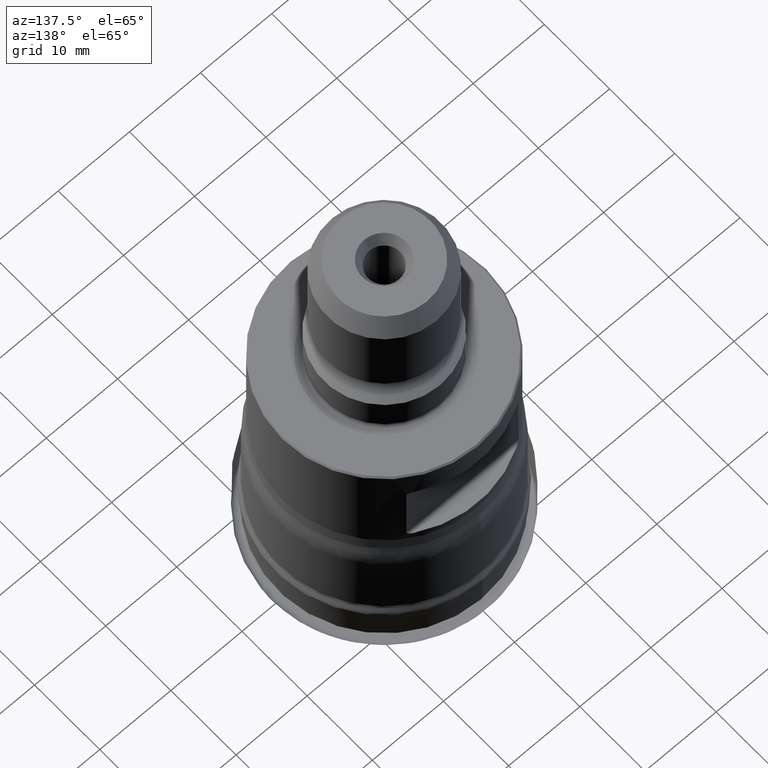
[diagram: clean part render]
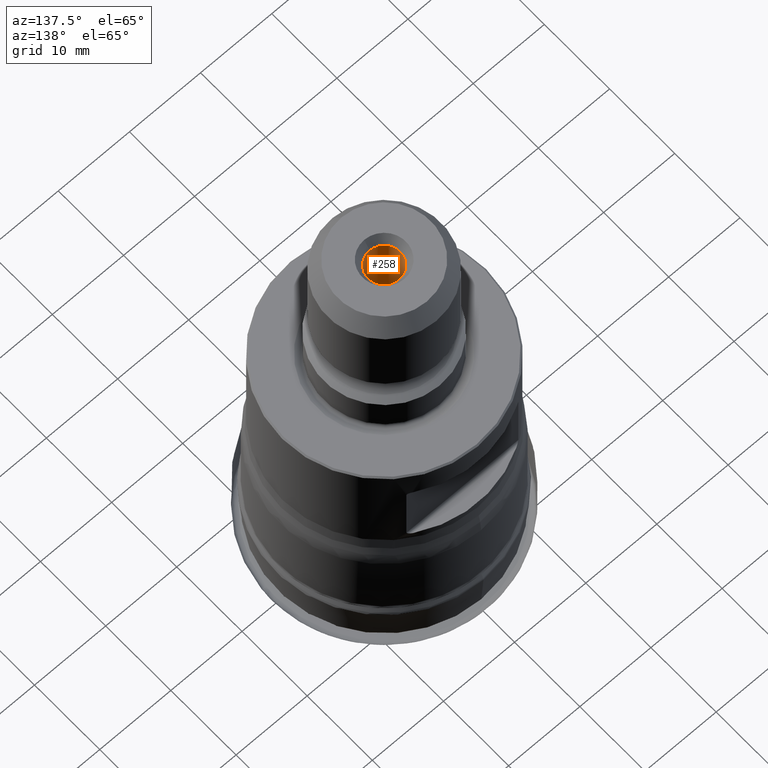
[diagram: same view with one face highlighted and labeled with its STEP entity id]
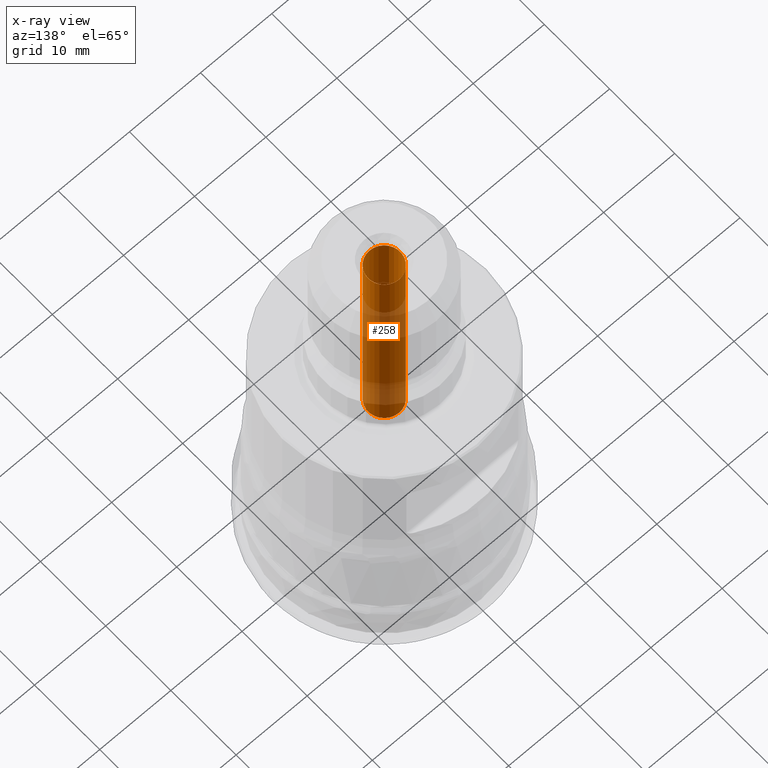
[diagram: x-ray of the same camera — body ghosted, the highlighted face saturated]
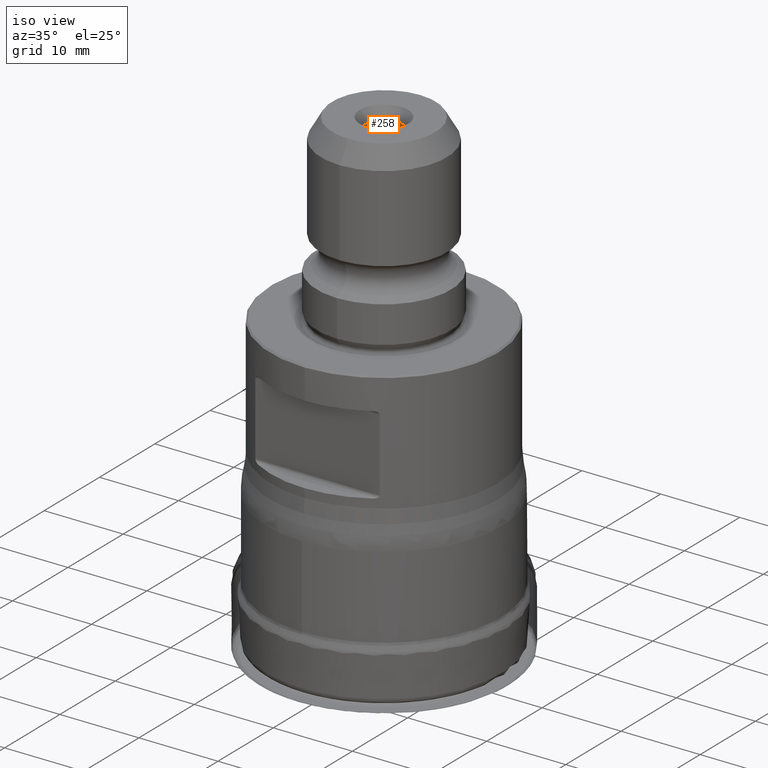
[diagram: same view with one face highlighted and labeled with its STEP entity id]
A machine part, auxiliary view. The second image highlights one B-rep face of the part: STEP entity #258.
The next image is the same camera in x-ray: the body ghosted, the highlighted face saturated — about 64% of this face is hidden behind the body in this view.
A second angle (iso view) of the same face is appended — the face is thin or edge-on in the first view.
In plain terms, the highlighted cylindrical surface (bore or boss wall) has radius 2.25 mm, axis along (0, -0, -1).
Its self-contained STEP definition (entity closure, byte-faithful):
#213=CYLINDRICAL_SURFACE('',#1025,2.25);
#258=ADVANCED_FACE('',(#362,#363),#213,.F.);
#362=FACE_BOUND('',#475,.T.);
#363=FACE_BOUND('',#476,.T.);
#475=EDGE_LOOP('',(#611));
#476=EDGE_LOOP('',(#612));
#611=ORIENTED_EDGE('',*,*,#819,.T.);
#612=ORIENTED_EDGE('',*,*,#818,.F.);
#745=VERTEX_POINT('',#1816);
#747=VERTEX_POINT('',#1820);
#818=EDGE_CURVE('',#745,#745,#885,.T.);
#819=EDGE_CURVE('',#747,#747,#886,.T.);
#885=CIRCLE('',#1022,2.25);
#886=CIRCLE('',#1024,2.25);
#1022=AXIS2_PLACEMENT_3D('',#1815,#1183,#1184);
#1024=AXIS2_PLACEMENT_3D('',#1819,#1187,#1188);
#1025=AXIS2_PLACEMENT_3D('',#1821,#1189,#1190);
#1183=DIRECTION('',(0.,1.17145536458252E-15,1.));
#1184=DIRECTION('',(0.,1.,-1.5419764230905E-15));
#1187=DIRECTION('',(0.,1.17145536458252E-15,1.));
#1188=DIRECTION('',(0.,-1.,0.));
#1189=DIRECTION('',(0.,-1.17145536458252E-15,-1.));
#1190=DIRECTION('',(0.,1.,0.));
#1815=CARTESIAN_POINT('',(0.,3.16292948437282E-14,27.));
#1816=CARTESIAN_POINT('',(0.,2.25000000000003,27.));
#1819=CARTESIAN_POINT('',(0.,6.99527066077874E-14,59.7143593539449));
#1820=CARTESIAN_POINT('',(0.,-2.24999999999993,59.7143593539449));
#1821=CARTESIAN_POINT('',(0.,7.15759227759922E-14,61.1));